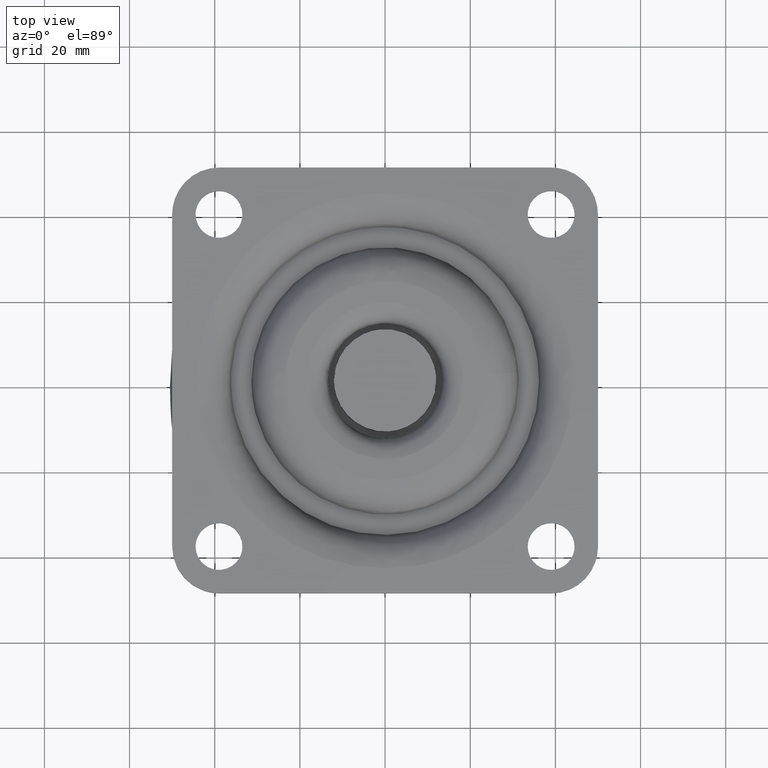
[diagram: clean part render]
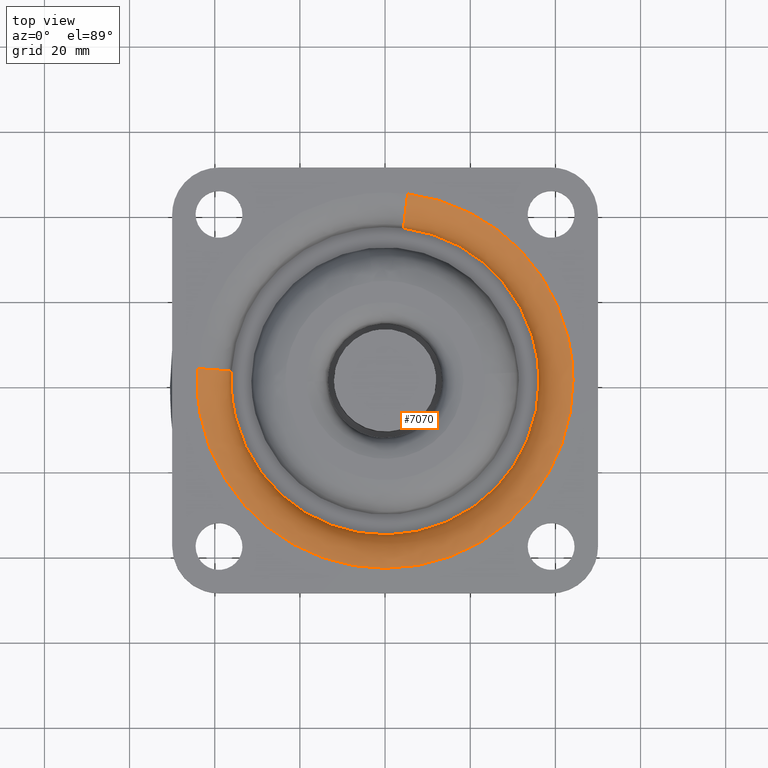
[diagram: same view with one face highlighted and labeled with its STEP entity id]
A machine part, top view. The second image highlights one B-rep face of the part: STEP entity #7070.
In plain terms, the highlighted face is a freeform B-spline surface patch.
Its self-contained STEP definition (entity closure, byte-faithful):
#6915=CARTESIAN_POINT('',(4.328017631746351,35.876811092637844,-7.979098766859918));
#6916=CARTESIAN_POINT('',(38.208407599749208,31.789632754146947,-7.979098766859922));
#6917=CARTESIAN_POINT('',(36.065616513188644,-2.269056262224992,-7.979098766859919));
#6918=CARTESIAN_POINT('',(33.796560250963665,-38.334672775413623,-7.979098766859920));
#6919=CARTESIAN_POINT('',(-2.269056262224982,-36.065616513188644,-7.979098766859919));
#6920=CARTESIAN_POINT('',(-38.334672775413623,-33.796560250963665,-7.979098766859920));
#6921=CARTESIAN_POINT('',(-36.065616513188644,2.269056262224980,-7.979098766859919));
#6922=CARTESIAN_POINT('',(4.330688275457947,35.898949214080289,0.555728085921710));
#6923=CARTESIAN_POINT('',(38.231984454597921,31.809248844013609,0.555728085921710));
#6924=CARTESIAN_POINT('',(36.087871138779647,-2.270456404588905,0.555728085921710));
#6925=CARTESIAN_POINT('',(33.817414734190763,-38.358327543368560,0.555728085921710));
#6926=CARTESIAN_POINT('',(-2.270456404588895,-36.087871138779647,0.555728085921710));
#6927=CARTESIAN_POINT('',(-38.358327543368560,-33.817414734190763,0.555728085921710));
#6928=CARTESIAN_POINT('',(-36.087871138779647,2.270456404588894,0.555728085921710));
#6929=CARTESIAN_POINT('',(5.350570960918370,44.353198146553247,-0.018101968536172));
#6930=CARTESIAN_POINT('',(47.235666201216681,39.300368054176779,-0.018101968536172));
#6931=CARTESIAN_POINT('',(44.586611428664931,-2.805151822002223,-0.018101968536172));
#6932=CARTESIAN_POINT('',(41.781459606662722,-47.391763250667140,-0.018101968536172));
#6933=CARTESIAN_POINT('',(-2.805151822002210,-44.586611428664931,-0.018101968536172));
#6934=CARTESIAN_POINT('',(-47.391763250667140,-41.781459606662722,-0.018101968536172));
#6935=CARTESIAN_POINT('',(-44.586611428664931,2.805151822002207,-0.018101968536172));
#6943=(BOUNDED_SURFACE()B_SPLINE_SURFACE(2,2,((#6915,#6922,#6929),(#6916,#6923,#6930),(#6917,#6924,#6931),(#6918,#6925,#6932),(#6919,#6926,#6933),(#6920,#6927,#6934),(#6921,#6928,#6935)),.UNSPECIFIED.,.F.,.F.,.U.)B_SPLINE_SURFACE_WITH_KNOTS((3,2,2,3),(3,3),(0.0,71.058794250021904,145.078371593794710,219.097948937567590),(0.0,13.865110306182579),.UNSPECIFIED.)GEOMETRIC_REPRESENTATION_ITEM()RATIONAL_B_SPLINE_SURFACE(((0.893243349468339,0.610140268119743,0.891116800045037),(0.656858942349949,0.448675147081466,0.655295154602886),(0.913798515304720,0.624180713427419,0.911623030083485),(0.646153126810167,0.441362415150385,0.644614826457861),(0.913798515304720,0.624180713427419,0.911623030083485),(0.646153126810167,0.441362415150385,0.644614826457861),(0.913798515304720,0.624180713427419,0.911623030083485)))REPRESENTATION_ITEM('')SURFACE());
#6944=CARTESIAN_POINT('',(4.330343572865243,35.896091824911551,-7.442517281246504));
#6945=VERTEX_POINT('',#6944);
#6946=CARTESIAN_POINT('',(36.156345000000201,0.0,-7.442517281741189));
#6947=VERTEX_POINT('',#6946);
#6948=CARTESIAN_POINT('',(4.330343572865243,35.896091824911551,-7.442517281246504));
#6949=CARTESIAN_POINT('',(36.156345000000194,32.056745708786494,-7.442517281741190));
#6950=CARTESIAN_POINT('',(36.156345000000201,0.0,-7.442517281741189));
#6958=(BOUNDED_CURVE()B_SPLINE_CURVE(2,(#6948,#6949,#6950),.UNSPECIFIED.,.F.,.U.)B_SPLINE_CURVE_WITH_KNOTS((3,3),(0.270732403713949,0.500000000000000),.UNSPECIFIED.)CURVE()GEOMETRIC_REPRESENTATION_ITEM()RATIONAL_B_SPLINE_CURVE((0.955449597720651,0.731396303016621,1.0))REPRESENTATION_ITEM(''));
#6959=EDGE_CURVE('',#6945,#6947,#6958,.T.);
#6960=ORIENTED_EDGE('',*,*,#6959,.T.);
#6961=CARTESIAN_POINT('',(-36.156345000000201,0.0,-7.442517281741189));
#6962=VERTEX_POINT('',#6961);
#6963=CARTESIAN_POINT('',(36.156345000000201,0.0,-7.442517281741189));
#6964=CARTESIAN_POINT('',(36.156345000000208,-36.156345000000208,-7.442517281741191));
#6965=CARTESIAN_POINT('',(0.0,-36.156345000000201,-7.442517281741189));
#6966=CARTESIAN_POINT('',(-36.156345000000208,-36.156345000000208,-7.442517281741191));
#6967=CARTESIAN_POINT('',(-36.156345000000201,0.0,-7.442517281741189));
#6975=(BOUNDED_CURVE()B_SPLINE_CURVE(2,(#6963,#6964,#6965,#6966,#6967),.UNSPECIFIED.,.F.,.U.)B_SPLINE_CURVE_WITH_KNOTS((3,2,3),(0.500000000000000,0.750000000000000,1.0),.UNSPECIFIED.)CURVE()GEOMETRIC_REPRESENTATION_ITEM()RATIONAL_B_SPLINE_CURVE((1.0,0.707106781186548,1.0,0.707106781186548,1.0))REPRESENTATION_ITEM(''));
#6976=EDGE_CURVE('',#6947,#6962,#6975,.T.);
#6977=ORIENTED_EDGE('',*,*,#6976,.T.);
#6978=CARTESIAN_POINT('',(-36.084998712306181,2.270275686857042,-7.442517281259111));
#6979=VERTEX_POINT('',#6978);
#6980=CARTESIAN_POINT('',(-36.156345000000201,0.0,-7.442517281741189));
#6981=CARTESIAN_POINT('',(-36.156345000000201,1.136258917149093,-7.442517281741190));
#6982=CARTESIAN_POINT('',(-36.084998712306181,2.270275686857042,-7.442517281259111));
#6990=(BOUNDED_CURVE()B_SPLINE_CURVE(2,(#6980,#6981,#6982),.UNSPECIFIED.,.F.,.U.)B_SPLINE_CURVE_WITH_KNOTS((3,3),(0.0,0.010968089259862),.UNSPECIFIED.)CURVE()GEOMETRIC_REPRESENTATION_ITEM()RATIONAL_B_SPLINE_CURVE((1.0,0.987150084129783,0.975427680453536))REPRESENTATION_ITEM(''));
#6991=EDGE_CURVE('',#6962,#6979,#6990,.T.);
#6992=ORIENTED_EDGE('',*,*,#6991,.T.);
#6993=CARTESIAN_POINT('',(-44.049803090458767,2.771378704019691,-1.252076E-015));
#6994=VERTEX_POINT('',#6993);
#6995=CARTESIAN_POINT('',(-36.084998712306188,2.270275686857042,-7.442517281259111));
#6996=CARTESIAN_POINT('',(-36.603871019584012,2.302920365392637,-2.637125E-010));
#6997=CARTESIAN_POINT('',(-44.049803090458774,2.771378704019691,-1.252076E-015));
#7005=(BOUNDED_CURVE()B_SPLINE_CURVE(2,(#6995,#6996,#6997),.UNSPECIFIED.,.F.,.U.)B_SPLINE_CURVE_WITH_KNOTS((3,3),(-1.720603117888545,-0.285348507137769),.UNSPECIFIED.)CURVE()GEOMETRIC_REPRESENTATION_ITEM()RATIONAL_B_SPLINE_CURVE((0.888683670912705,0.649196803802833,0.886705694414434))REPRESENTATION_ITEM(''));
#7006=EDGE_CURVE('',#6979,#6994,#7005,.T.);
#7007=ORIENTED_EDGE('',*,*,#7006,.T.);
#7008=CARTESIAN_POINT('',(-44.136897175059403,0.0,0.0));
#7009=VERTEX_POINT('',#7008);
#7010=CARTESIAN_POINT('',(-44.136897175059403,0.0,0.0));
#7011=CARTESIAN_POINT('',(-44.136897175059410,1.387057872946142,0.0));
#7012=CARTESIAN_POINT('',(-44.049803090458774,2.771378704019691,-1.252076E-015));
#7020=(BOUNDED_CURVE()B_SPLINE_CURVE(2,(#7010,#7011,#7012),.UNSPECIFIED.,.F.,.U.)B_SPLINE_CURVE_WITH_KNOTS((3,3),(0.0,0.010968089259593),.UNSPECIFIED.)CURVE()GEOMETRIC_REPRESENTATION_ITEM()RATIONAL_B_SPLINE_CURVE((1.0,0.987150084130098,0.975427680454111))REPRESENTATION_ITEM(''));
#7021=EDGE_CURVE('',#7009,#6994,#7020,.T.);
#7022=ORIENTED_EDGE('',*,*,#7021,.F.);
#7023=CARTESIAN_POINT('',(44.136897175059403,0.0,0.0));
#7024=VERTEX_POINT('',#7023);
#7025=CARTESIAN_POINT('',(44.136897175059403,0.0,0.0));
#7026=CARTESIAN_POINT('',(44.136897175059403,-44.136897175059403,0.0));
#7027=CARTESIAN_POINT('',(0.0,-44.136897175059403,0.0));
#7028=CARTESIAN_POINT('',(-44.136897175059403,-44.136897175059403,0.0));
#7029=CARTESIAN_POINT('',(-44.136897175059403,0.0,0.0));
#7037=(BOUNDED_CURVE()B_SPLINE_CURVE(2,(#7025,#7026,#7027,#7028,#7029),.UNSPECIFIED.,.F.,.U.)B_SPLINE_CURVE_WITH_KNOTS((3,2,3),(0.500000000000000,0.750000000000000,1.0),.UNSPECIFIED.)CURVE()GEOMETRIC_REPRESENTATION_ITEM()RATIONAL_B_SPLINE_CURVE((1.0,0.707106781186548,1.0,0.707106781186548,1.0))REPRESENTATION_ITEM(''));
#7038=EDGE_CURVE('',#7024,#7009,#7037,.T.);
#7039=ORIENTED_EDGE('',*,*,#7038,.F.);
#7040=CARTESIAN_POINT('',(5.286151822266900,43.819200028545673,-1.408978E-015));
#7041=VERTEX_POINT('',#7040);
#7042=CARTESIAN_POINT('',(5.286151822266900,43.819200028545666,-1.408978E-015));
#7043=CARTESIAN_POINT('',(44.136897175059403,39.132420301728160,0.0));
#7044=CARTESIAN_POINT('',(44.136897175059403,0.0,0.0));
#7052=(BOUNDED_CURVE()B_SPLINE_CURVE(2,(#7042,#7043,#7044),.UNSPECIFIED.,.F.,.U.)B_SPLINE_CURVE_WITH_KNOTS((3,3),(0.270732403714120,0.500000000000000),.UNSPECIFIED.)CURVE()GEOMETRIC_REPRESENTATION_ITEM()RATIONAL_B_SPLINE_CURVE((0.955449597720318,0.731396303016821,1.0))REPRESENTATION_ITEM(''));
#7053=EDGE_CURVE('',#7041,#7024,#7052,.T.);
#7054=ORIENTED_EDGE('',*,*,#7053,.F.);
#7055=CARTESIAN_POINT('',(4.330343572865243,35.896091824911551,-7.442517281246504));
#7056=CARTESIAN_POINT('',(4.392610316396540,36.412247808089973,-2.538583E-010));
#7057=CARTESIAN_POINT('',(5.286151822266900,43.819200028545659,-1.408978E-015));
#7065=(BOUNDED_CURVE()B_SPLINE_CURVE(2,(#7055,#7056,#7057),.UNSPECIFIED.,.F.,.U.)B_SPLINE_CURVE_WITH_KNOTS((3,3),(-1.720603117885217,-0.285348507136381),.UNSPECIFIED.)CURVE()GEOMETRIC_REPRESENTATION_ITEM()RATIONAL_B_SPLINE_CURVE((0.868693443387991,0.634593641575237,0.866759959888629))REPRESENTATION_ITEM(''));
#7066=EDGE_CURVE('',#6945,#7041,#7065,.T.);
#7067=ORIENTED_EDGE('',*,*,#7066,.F.);
#7068=EDGE_LOOP('',(#6960,#6977,#6992,#7007,#7022,#7039,#7054,#7067));
#7069=FACE_OUTER_BOUND('',#7068,.T.);
#7070=ADVANCED_FACE('',(#7069),#6943,.T.);